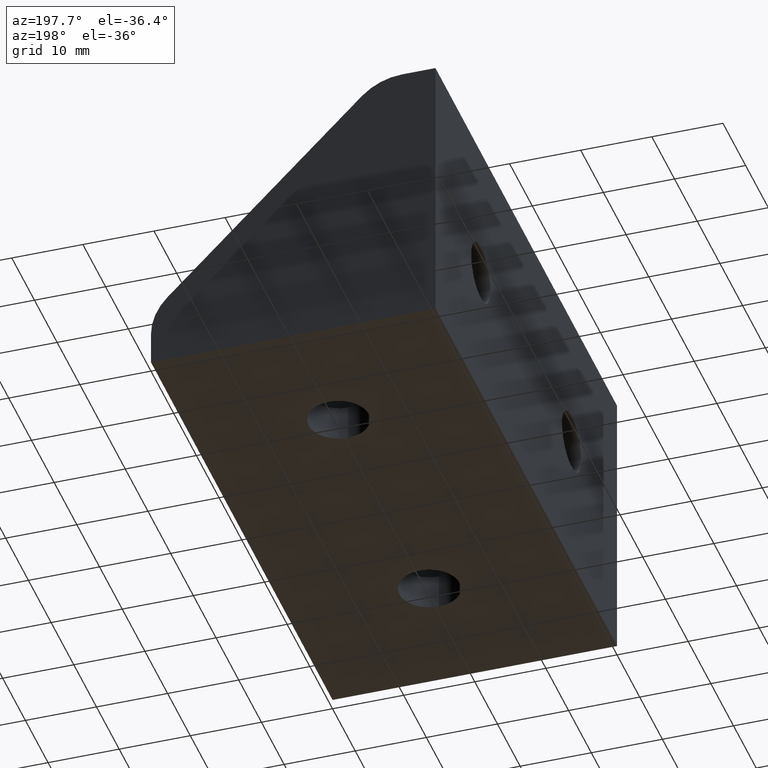
[diagram: clean part render]
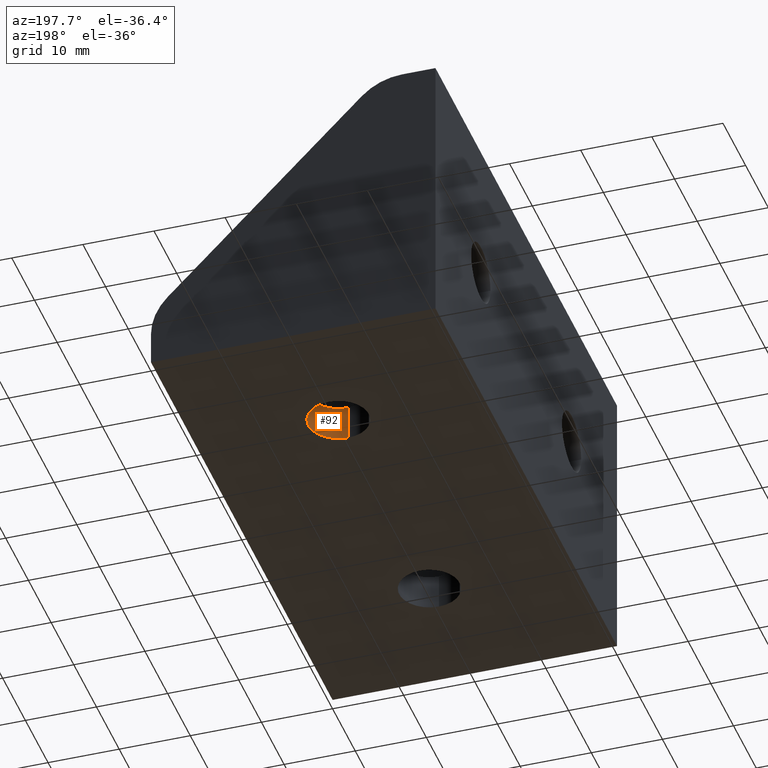
[diagram: same view with one face highlighted and labeled with its STEP entity id]
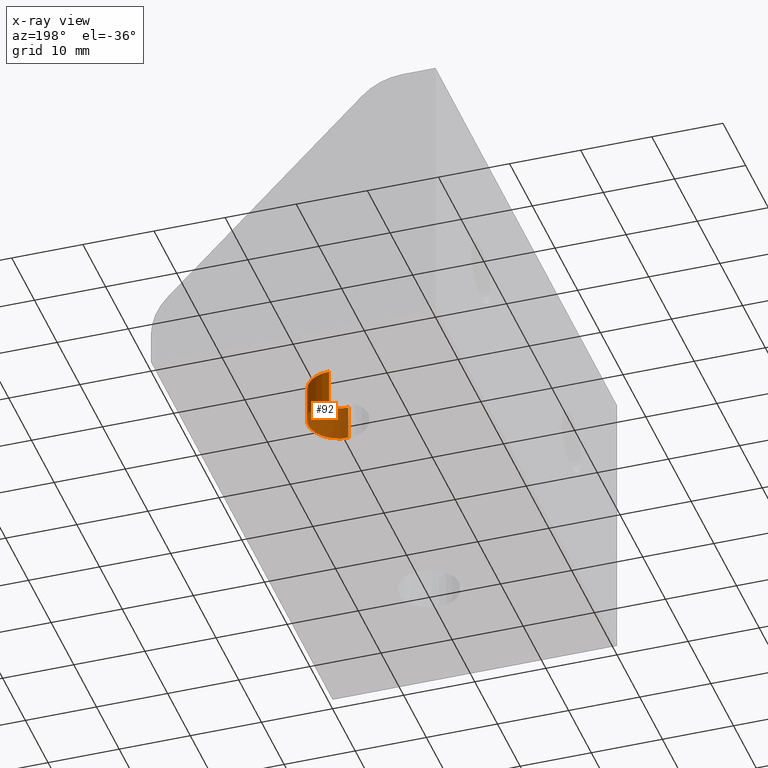
[diagram: x-ray of the same camera — body ghosted, the highlighted face saturated]
A machine part, auxiliary view. The second image highlights one B-rep face of the part: STEP entity #92.
The next image is the same camera in x-ray: the body ghosted, the highlighted face saturated — about 0% of this face is hidden behind the body in this view.
In plain terms, the highlighted cylindrical surface (edge-blend (fillet) strip) has radius 4.25 mm, axis along (0, 0, 1).
Its self-contained STEP definition (entity closure, byte-faithful):
#51=CARTESIAN_POINT('',(19.999999999999993,19.999999999999996,-9.999994E-009));
#52=DIRECTION('',(0.0,6.123234E-017,1.0));
#53=DIRECTION('',(-1.0,1.224647E-016,-7.498799E-033));
#54=AXIS2_PLACEMENT_3D('',#51,#52,#53);
#55=CYLINDRICAL_SURFACE('',#54,4.250000000000004);
#56=CARTESIAN_POINT('',(20.0,15.749999999999977,-9.644094E-016));
#57=VERTEX_POINT('',#56);
#58=CARTESIAN_POINT('',(20.0,24.249999999999996,-1.484884E-015));
#59=VERTEX_POINT('',#58);
#60=CARTESIAN_POINT('',(20.0,19.999999999999996,-1.224647E-015));
#61=DIRECTION('',(0.0,6.123234E-017,1.0));
#62=DIRECTION('',(1.224647E-016,1.0,-6.123234E-017));
#63=AXIS2_PLACEMENT_3D('',#60,#61,#62);
#64=CIRCLE('',#63,4.250000000000004);
#65=EDGE_CURVE('',#57,#59,#64,.T.);
#66=ORIENTED_EDGE('',*,*,#65,.F.);
#67=CARTESIAN_POINT('',(20.0,15.749999999999977,5.000000000000013));
#68=VERTEX_POINT('',#67);
#69=CARTESIAN_POINT('',(20.0,15.749999999999977,-9.644094E-016));
#70=DIRECTION('',(0.0,0.0,1.0));
#71=VECTOR('',#70,5.000000000000014);
#72=LINE('',#69,#71);
#73=EDGE_CURVE('',#57,#68,#72,.T.);
#74=ORIENTED_EDGE('',*,*,#73,.T.);
#75=CARTESIAN_POINT('',(20.0,24.249999999999996,5.000000000000012));
#76=VERTEX_POINT('',#75);
#77=CARTESIAN_POINT('',(20.0,19.999999999999996,5.000000000000013));
#78=DIRECTION('',(0.0,6.123234E-017,1.0));
#79=DIRECTION('',(-1.224647E-016,-1.0,6.123234E-017));
#80=AXIS2_PLACEMENT_3D('',#77,#78,#79);
#81=CIRCLE('',#80,4.250000000000004);
#82=EDGE_CURVE('',#68,#76,#81,.T.);
#83=ORIENTED_EDGE('',*,*,#82,.T.);
#84=CARTESIAN_POINT('',(20.0,24.249999999999996,-1.484884E-015));
#85=DIRECTION('',(0.0,0.0,1.0));
#86=VECTOR('',#85,5.000000000000014);
#87=LINE('',#84,#86);
#88=EDGE_CURVE('',#59,#76,#87,.T.);
#89=ORIENTED_EDGE('',*,*,#88,.F.);
#90=EDGE_LOOP('',(#66,#74,#83,#89));
#91=FACE_OUTER_BOUND('',#90,.T.);
#92=ADVANCED_FACE('',(#91),#55,.F.);